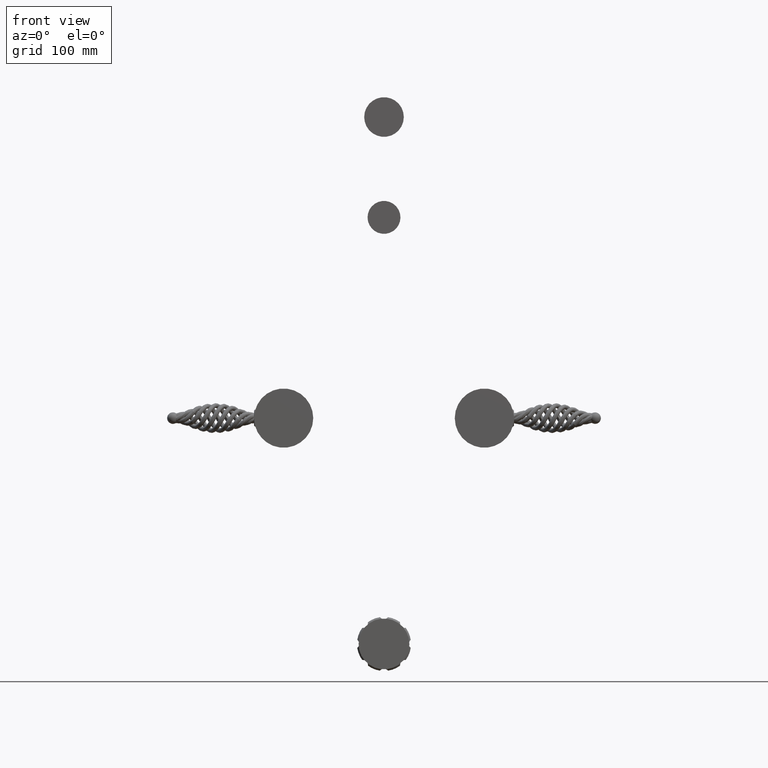
[diagram: clean part render]
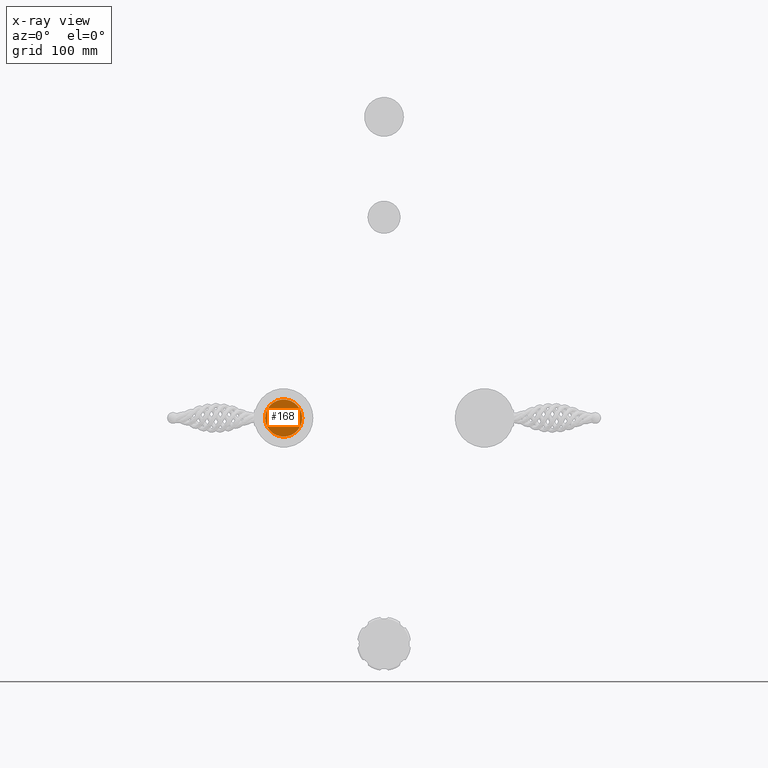
[diagram: x-ray — body ghosted, one internal face saturated and labeled with its STEP entity id]
A machine part, front view, then the same camera in x-ray: the body is ghosted and one INTERNAL B-rep face — a face not visible from any outside direction — is saturated and labeled: STEP entity #168.
In plain terms, the highlighted planar face has unit normal (0, -1, 0).
Its self-contained STEP definition (entity closure, byte-faithful):
#27=CARTESIAN_POINT('',(-4.E0,2.17E-1,0.E0));
#28=DIRECTION('',(0.E0,1.E0,0.E0));
#29=DIRECTION('',(1.E0,0.E0,0.E0));
#30=AXIS2_PLACEMENT_3D('',#27,#28,#29);
#32=CARTESIAN_POINT('',(-4.E0,2.17E-1,0.E0));
#33=DIRECTION('',(0.E0,-1.E0,0.E0));
#34=DIRECTION('',(1.E0,0.E0,0.E0));
#35=AXIS2_PLACEMENT_3D('',#32,#33,#34);
#87=CARTESIAN_POINT('',(-3.259E0,2.17E-1,0.E0));
#89=VERTEX_POINT('',#87);
#97=CARTESIAN_POINT('',(-4.741E0,2.17E-1,0.E0));
#99=VERTEX_POINT('',#97);
#158=CARTESIAN_POINT('',(-4.E0,2.17E-1,0.E0));
#159=DIRECTION('',(0.E0,-1.E0,0.E0));
#160=DIRECTION('',(-1.E0,0.E0,0.E0));
#161=AXIS2_PLACEMENT_3D('',#158,#159,#160);
#162=PLANE('',#161);
#164=ORIENTED_EDGE('',*,*,#163,.F.);
#165=ORIENTED_EDGE('',*,*,#153,.T.);
#166=EDGE_LOOP('',(#164,#165));
#167=FACE_OUTER_BOUND('',#166,.F.);
#168=ADVANCED_FACE('',(#167),#162,.F.);
#31=CIRCLE('',#30,7.41E-1);
#36=CIRCLE('',#35,7.41E-1);
#153=EDGE_CURVE('',#89,#99,#36,.T.);
#163=EDGE_CURVE('',#89,#99,#31,.T.);